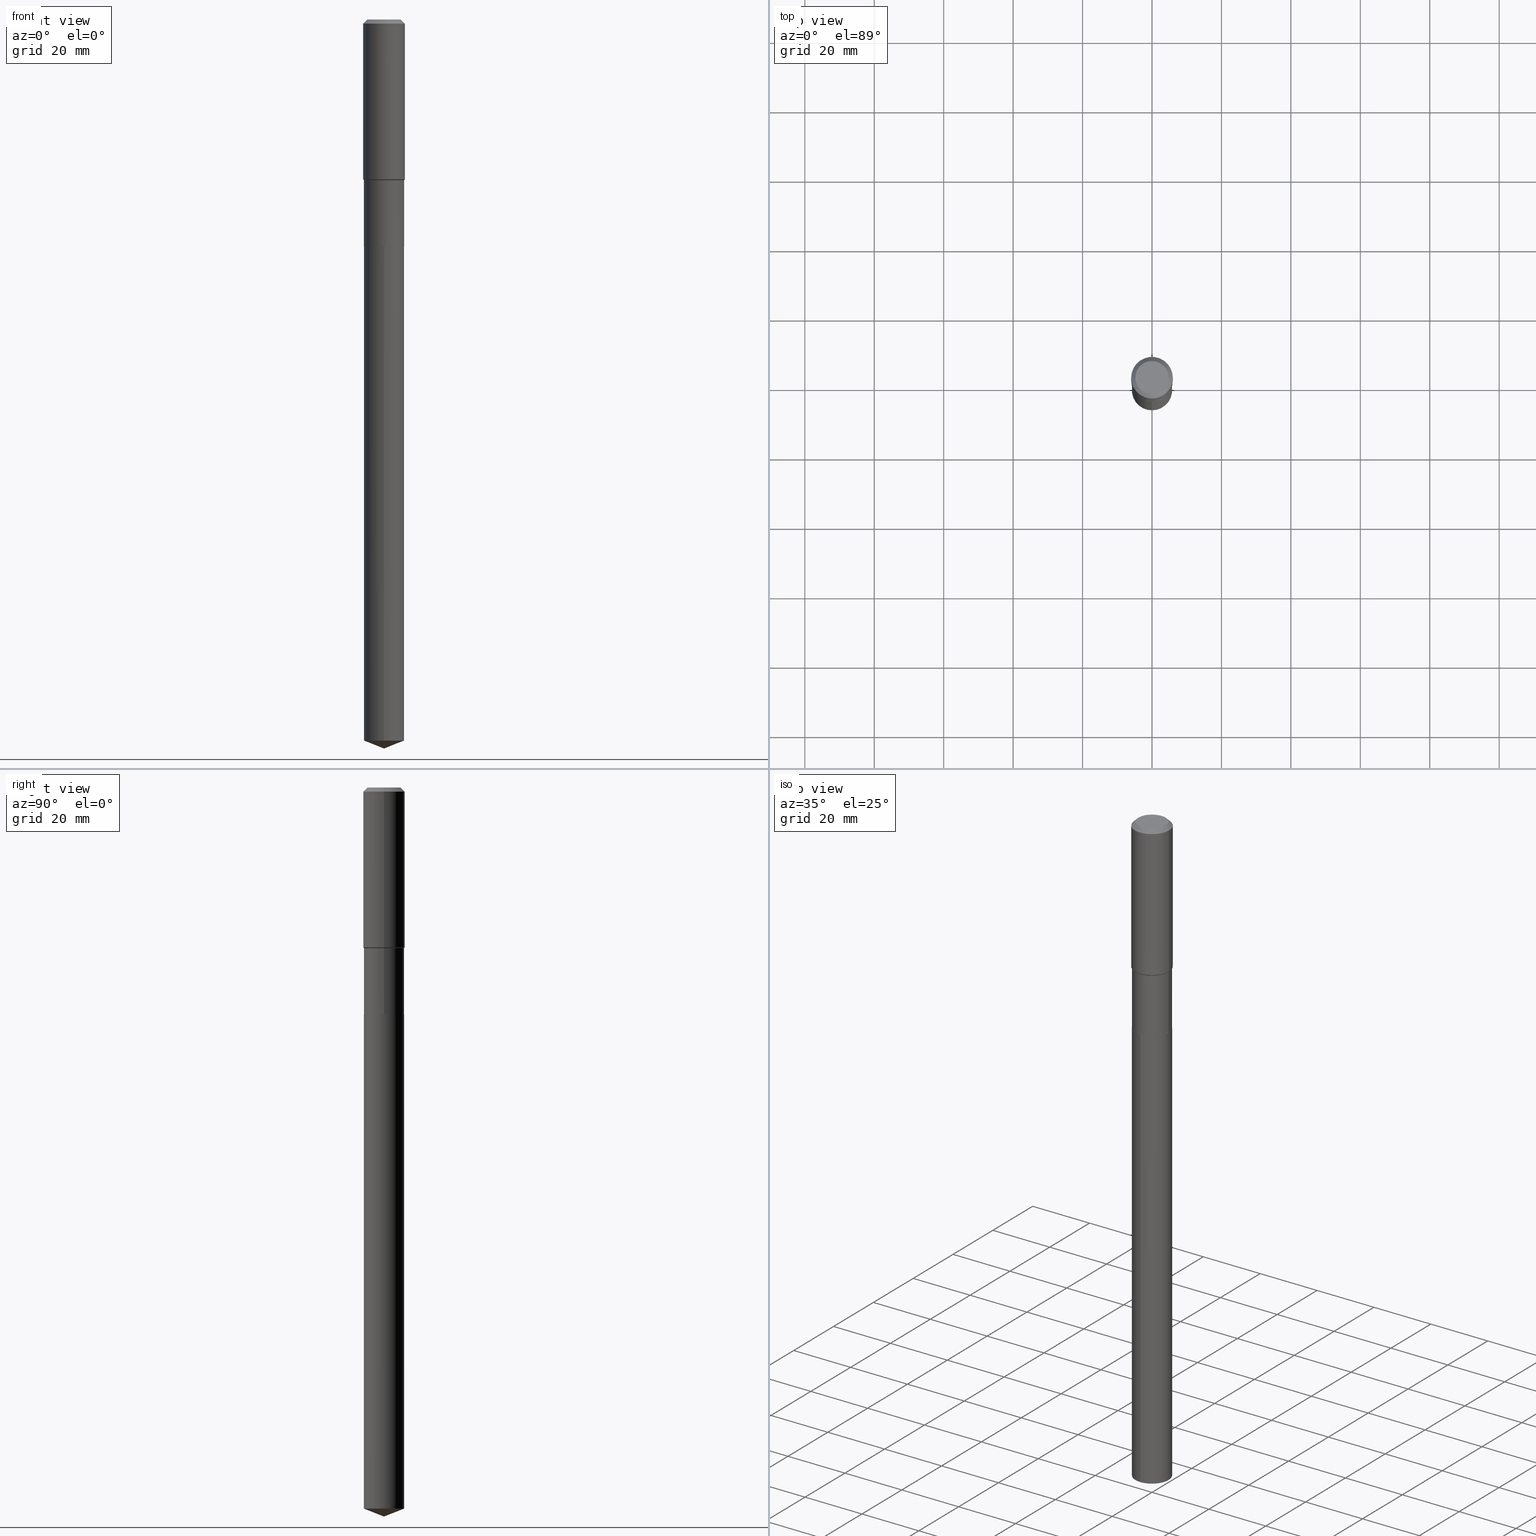
[diagram: canonical four-view strip — front | top / right | iso, engineering-drawing reading convention]
A machine part, canonical four-view strip (front | top / right | iso — engineering-drawing reading convention). The complete STEP part file that produces these views, byte-faithful:
ISO-10303-21;
HEADER;
FILE_DESCRIPTION (( 'STEP AP203' ),
    '1' );
FILE_NAME ('66795.STEP',
    '2024-04-25T06:27:43',
    ( '' ),
    ( '' ),
    'SwSTEP 2.0',
    'SolidWorks 2023',
    '' );
FILE_SCHEMA (( 'CONFIG_CONTROL_DESIGN' ));
ENDSEC;

DATA;
#1 = ADVANCED_FACE ( 'NONE', ( #294 ), #219, .T. ) ;
#2 = CYLINDRICAL_SURFACE ( 'NONE', #289, 0.2283499999999999974 ) ;
#3 = DIRECTION ( 'NONE',  ( 1.000000000000000000, -6.982962677686266711E-15, 4.876176775795936353E-29 ) ) ;
#4 = CIRCLE ( 'NONE', #480, 0.2283499999999999974 ) ;
#5 = MANIFOLD_SOLID_BREP ( 'Body-Move/Copy2[2]', #431 ) ;
#6 = PRODUCT_DEFINITION_SHAPE ( 'NONE', 'NONE',  #258 ) ;
#7 = ORIENTED_EDGE ( 'NONE', *, *, #39, .F. ) ;
#8 = DIMENSIONAL_EXPONENTS ( 1.000000000000000000, 0.000000000000000000, 0.000000000000000000, 0.000000000000000000, 0.000000000000000000, 0.000000000000000000, 0.000000000000000000 ) ;
#9 = VERTEX_POINT ( 'NONE', #56 ) ;
#10 = DIRECTION ( 'NONE',  ( -2.445468806185136597E-29, 3.491481338843145583E-15, 1.000000000000000000 ) ) ;
#11 = CONICAL_SURFACE ( 'NONE', #28, 0.2283499999999999142, 0.7853981633974482790 ) ;
#12 = MANIFOLD_SOLID_BREP ( 'Body-Move/Copy2[1]', #454 ) ;
#13 = CARTESIAN_POINT ( 'NONE',  ( -7.605959320527733782E-28, 1.085917119669947686E-13, 31.10207874015748430 ) ) ;
#14 = LINE ( 'NONE', #125, #96 ) ;
#15 = CARTESIAN_POINT ( 'NONE',  ( 0.000000000000000000, 0.000000000000000000, 0.000000000000000000 ) ) ;
#16 = CARTESIAN_POINT ( 'NONE',  ( 4.454421430466227145E-29, -6.359733258702789937E-15, -1.821500000000000119 ) ) ;
#17 = FACE_OUTER_BOUND ( 'NONE', #29, .T. ) ;
#18 = CIRCLE ( 'NONE', #200, 0.2283499999999999974 ) ;
#19 = PLANE ( 'NONE',  #141 ) ;
#20 = VERTEX_POINT ( 'NONE', #395 ) ;
#21 = APPROVAL ( #100, 'UNSPECIFIED' ) ;
#22 = ADVANCED_FACE ( 'NONE', ( #17 ), #365, .T. ) ;
#23 = EDGE_LOOP ( 'NONE', ( #373, #81, #205 ) ) ;
#24 = EDGE_LOOP ( 'NONE', ( #327, #99, #385, #386 ) ) ;
#25 = AXIS2_PLACEMENT_3D ( 'NONE', #450, #335, #442 ) ;
#26 = ORIENTED_EDGE ( 'NONE', *, *, #142, .T. ) ;
#27 = PERSON_AND_ORGANIZATION ( #202, #341 ) ;
#28 = AXIS2_PLACEMENT_3D ( 'NONE', #440, #171, #326 ) ;
#29 = EDGE_LOOP ( 'NONE', ( #153, #378, #7 ) ) ;
#30 = LINE ( 'NONE', #110, #283 ) ;
#31 = DIRECTION ( 'NONE',  ( -2.438088387897960049E-29, 3.491481338843145188E-15, 1.000000000000000000 ) ) ;
#32 = CC_DESIGN_PERSON_AND_ORGANIZATION_ASSIGNMENT ( #94, #243, ( #256 ) ) ;
#33 = DIRECTION ( 'NONE',  ( -2.445468806185136597E-29, 3.491481338843145583E-15, 1.000000000000000000 ) ) ;
#34 = CARTESIAN_POINT ( 'NONE',  ( -0.2283499999999999142, -4.737208921594601575E-15, -1.821500000000000119 ) ) ;
#35 = CIRCLE ( 'NONE', #303, 0.2283499999999999974 ) ;
#36 = FACE_OUTER_BOUND ( 'NONE', #434, .T. ) ;
#37 = ORIENTED_EDGE ( 'NONE', *, *, #259, .F. ) ;
#38 = CC_DESIGN_PERSON_AND_ORGANIZATION_ASSIGNMENT ( #72, #404, ( #143 ) ) ;
#39 = EDGE_CURVE ( 'NONE', #20, #284, #18, .T. ) ;
#40 = FACE_OUTER_BOUND ( 'NONE', #300, .T. ) ;
#41 = CARTESIAN_POINT ( 'NONE',  ( 2.021924161816590711E-28, -2.886741658655466640E-14, -8.268000000000000682 ) ) ;
#42 = CARTESIAN_POINT ( 'NONE',  ( -0.2362000000000001321, 1.678301941865357577E-15, -1.161852468318209457E-29 ) ) ;
#43 = DIRECTION ( 'NONE',  ( -2.445481569686249051E-29, 3.491463060783099046E-15, 1.000000000000000000 ) ) ;
#44 = CONICAL_SURFACE ( 'NONE', #260, 0.2362000000000000210, 0.7853981633974452814 ) ;
#45 = CIRCLE ( 'NONE', #220, 0.2283499999999999142 ) ;
#46 = ORIENTED_EDGE ( 'NONE', *, *, #252, .T. ) ;
#47 = ORIENTED_EDGE ( 'NONE', *, *, #458, .F. ) ;
#48 =( CONVERSION_BASED_UNIT ( 'INCH', #233 ) LENGTH_UNIT ( ) NAMED_UNIT ( #8 ) );
#49 = CARTESIAN_POINT ( 'NONE',  ( 1.999923901131654645E-28, -2.855340844756166145E-14, -8.178050542893329222 ) ) ;
#50 = ORIENTED_EDGE ( 'NONE', *, *, #66, .F. ) ;
#51 = DIRECTION ( 'NONE',  ( 1.000000000000000000, -6.982962677686266711E-15, 4.876176775795936353E-29 ) ) ;
#52 = CYLINDRICAL_SURFACE ( 'NONE', #213, 0.2362000000000001321 ) ;
#53 = ADVANCED_FACE ( 'NONE', ( #198 ), #382, .T. ) ;
#54 = DIRECTION ( 'NONE',  ( -2.445481569686249051E-29, 3.491463060783099046E-15, 1.000000000000000000 ) ) ;
#55 = CARTESIAN_POINT ( 'NONE',  ( 6.297326722807346866E-29, -8.990913595654986612E-15, -2.575100000000000833 ) ) ;
#56 = CARTESIAN_POINT ( 'NONE',  ( -0.2283499999999999142, -6.051926219735989161E-15, -1.821500000000000119 ) ) ;
#57 = DIRECTION ( 'NONE',  ( -6.982962677686265922E-15, -1.000000000000000000, 3.498627837349988051E-15 ) ) ;
#58 = ADVANCED_FACE ( 'NONE', ( #347 ), #269, .T. ) ;
#59 = ORIENTED_EDGE ( 'NONE', *, *, #470, .T. ) ;
#60 = EDGE_CURVE ( 'NONE', #362, #296, #121, .T. ) ;
#61 = AXIS2_PLACEMENT_3D ( 'NONE', #435, #361, #89 ) ;
#62 = AXIS2_PLACEMENT_3D ( 'NONE', #398, #455, #449 ) ;
#63 = PERSON_AND_ORGANIZATION_ROLE ( 'creator' ) ;
#64 = CARTESIAN_POINT ( 'NONE',  ( 0.000000000000000000, 0.000000000000000000, 0.000000000000000000 ) ) ;
#65 = CARTESIAN_POINT ( 'NONE',  ( 6.296103988404252944E-29, -8.989167854985564319E-15, -2.574600000000000666 ) ) ;
#66 = EDGE_CURVE ( 'NONE', #102, #416, #340, .T. ) ;
#67 = DIRECTION ( 'NONE',  ( 0.000000000000000000, 0.000000000000000000, 1.000000000000000000 ) ) ;
#68 = ORIENTED_EDGE ( 'NONE', *, *, #350, .F. ) ;
#69 = APPROVAL_DATE_TIME ( #408, #21 ) ;
#70 = CARTESIAN_POINT ( 'NONE',  ( 6.297326722807346866E-29, -8.990913595654986612E-15, -2.575100000000000833 ) ) ;
#71 = LINE ( 'NONE', #401, #137 ) ;
#72 = PERSON_AND_ORGANIZATION ( #202, #341 ) ;
#73 = EDGE_CURVE ( 'NONE', #9, #151, #212, .T. ) ;
#74 = ORIENTED_EDGE ( 'NONE', *, *, #350, .T. ) ;
#75 = EDGE_CURVE ( 'NONE', #151, #362, #430, .T. ) ;
#76 = CARTESIAN_POINT ( 'NONE',  ( 0.2362000000000000210, -1.785387205520587177E-15, -0.04724000000000030952 ) ) ;
#77 = CIRCLE ( 'NONE', #195, 0.2278499999999999970 ) ;
#78 = CALENDAR_DATE ( 2024, 25, 4 ) ;
#79 = ADVANCED_FACE ( 'NONE', ( #101 ), #19, .F. ) ;
#80 = DIRECTION ( 'NONE',  ( 1.000000000000000000, -6.982962677686264344E-15, 0.000000000000000000 ) ) ;
#81 = ORIENTED_EDGE ( 'NONE', *, *, #413, .T. ) ;
#82 = CC_DESIGN_PERSON_AND_ORGANIZATION_ASSIGNMENT ( #414, #293, ( #128 ) ) ;
#83 = AXIS2_PLACEMENT_3D ( 'NONE', #392, #161, #57 ) ;
#84 = ORIENTED_EDGE ( 'NONE', *, *, #236, .T. ) ;
#85 = DIRECTION ( 'NONE',  ( -1.000000000000000000, 6.982962677686267499E-15, 0.000000000000000000 ) ) ;
#86 = EDGE_CURVE ( 'NONE', #126, #343, #439, .T. ) ;
#87 = CARTESIAN_POINT ( 'NONE',  ( 6.296103988404252944E-29, -8.989167854985564319E-15, -2.574600000000000666 ) ) ;
#88 = DIRECTION ( 'NONE',  ( -2.445468806185136597E-29, 3.491481338843145583E-15, 1.000000000000000000 ) ) ;
#89 = DIRECTION ( 'NONE',  ( -6.982962677686265922E-15, -1.000000000000000000, 2.392684907960817401E-15 ) ) ;
#90 = CIRCLE ( 'NONE', #188, 0.2283499999999999974 ) ;
#91 = DIRECTION ( 'NONE',  ( -2.445468806185136597E-29, 3.491481338843145583E-15, 1.000000000000000000 ) ) ;
#92 = CARTESIAN_POINT ( 'NONE',  ( 0.2283499999999999142, -7.954292786152448094E-15, -1.821500000000000119 ) ) ;
#93 = APPROVAL_ROLE ( '' ) ;
#94 = PERSON_AND_ORGANIZATION ( #202, #341 ) ;
#95 = DIRECTION ( 'NONE',  ( -2.445481569686249051E-29, 3.491463060783099046E-15, 1.000000000000000000 ) ) ;
#96 = VECTOR ( 'NONE', #272, 39.37007874015748143 ) ;
#97 = LOCAL_TIME ( 2, 27, 43.00000000000000000, #324 ) ;
#98 = DIRECTION ( 'NONE',  ( 0.7071067811864267805, -2.468850131080992517E-15, 0.7071067811866682540 ) ) ;
#99 = ORIENTED_EDGE ( 'NONE', *, *, #109, .T. ) ;
#100 = APPROVAL_STATUS ( 'not_yet_approved' ) ;
#101 = FACE_OUTER_BOUND ( 'NONE', #165, .T. ) ;
#102 = VERTEX_POINT ( 'NONE', #317 ) ;
#103 = AXIS2_PLACEMENT_3D ( 'NONE', #257, #292, #339 ) ;
#104 = VECTOR ( 'NONE', #457, 39.37007874015748143 ) ;
#105 = COORDINATED_UNIVERSAL_TIME_OFFSET ( 5, 0, .BEHIND. ) ;
#106 = CARTESIAN_POINT ( 'NONE',  ( -0.2278499999999999970, -7.371941972225599148E-15, -2.575100000000000833 ) ) ;
#107 = DIRECTION ( 'NONE',  ( 1.000000000000000000, -6.982962677686270655E-15, 0.000000000000000000 ) ) ;
#108 = ADVANCED_FACE ( 'NONE', ( #131 ), #246, .T. ) ;
#109 = EDGE_CURVE ( 'NONE', #415, #362, #275, .T. ) ;
#110 = CARTESIAN_POINT ( 'NONE',  ( 2.021917588358248177E-28, -2.886751072221951483E-14, -8.268000000000000682 ) ) ;
#111 = DIRECTION ( 'NONE',  ( -2.445481569686249051E-29, 3.491463060783099046E-15, 1.000000000000000000 ) ) ;
#112 = AXIS2_PLACEMENT_3D ( 'NONE', #16, #129, #276 ) ;
#113 = CARTESIAN_POINT ( 'NONE',  ( -0.2362000000000000210, -1.570329412454553848E-15, -0.04724000000000030952 ) ) ;
#114 = LOCAL_TIME ( 2, 27, 43.00000000000000000, #313 ) ;
#115 = EDGE_LOOP ( 'NONE', ( #118, #84, #68, #397 ) ) ;
#116 = CARTESIAN_POINT ( 'NONE',  ( -0.2362000000000002153, -4.654023188327512386E-15, -1.813649999999999984 ) ) ;
#117 = DIRECTION ( 'NONE',  ( 1.000000000000000000, -6.982962677686267499E-15, 0.000000000000000000 ) ) ;
#118 = ORIENTED_EDGE ( 'NONE', *, *, #405, .T. ) ;
#119 = CARTESIAN_POINT ( 'NONE',  ( 0.2362000000000002153, -7.981700914662367672E-15, -1.813649999999999984 ) ) ;
#120 = EDGE_CURVE ( 'NONE', #126, #484, #178, .T. ) ;
#121 = LINE ( 'NONE', #274, #127 ) ;
#122 = CC_DESIGN_SECURITY_CLASSIFICATION ( #143, ( #128 ) ) ;
#123 = ORIENTED_EDGE ( 'NONE', *, *, #433, .T. ) ;
#124 = DIRECTION ( 'NONE',  ( 1.000000000000000000, -6.982962677686266711E-15, 0.000000000000000000 ) ) ;
#125 = CARTESIAN_POINT ( 'NONE',  ( -0.2283499999999999697, 1.622524337108188559E-15, -1.123238827859707655E-29 ) ) ;
#126 = VERTEX_POINT ( 'NONE', #369 ) ;
#127 = VECTOR ( 'NONE', #235, 39.37007874015748143 ) ;
#128 = PRODUCT_DEFINITION_FORMATION_WITH_SPECIFIED_SOURCE ( 'ANY', '', #256, .NOT_KNOWN. ) ;
#129 = DIRECTION ( 'NONE',  ( -2.445468806185136597E-29, 3.491481338843145583E-15, 1.000000000000000000 ) ) ;
#130 = ORIENTED_EDGE ( 'NONE', *, *, #120, .T. ) ;
#131 = FACE_OUTER_BOUND ( 'NONE', #163, .T. ) ;
#132 = COORDINATED_UNIVERSAL_TIME_OFFSET ( 5, 0, .BEHIND. ) ;
#133 = PERSON_AND_ORGANIZATION ( #202, #341 ) ;
#134 = CYLINDRICAL_SURFACE ( 'NONE', #466, 0.2283499999999999974 ) ;
#135 = EDGE_LOOP ( 'NONE', ( #211, #26 ) ) ;
#136 = CIRCLE ( 'NONE', #297, 0.1889600000000000168 ) ;
#137 = VECTOR ( 'NONE', #98, 39.37007874015748143 ) ;
#138 = DATE_AND_TIME ( #210, #114 ) ;
#139 = DIRECTION ( 'NONE',  ( -2.445481569686249051E-29, 3.491463060783099046E-15, 1.000000000000000000 ) ) ;
#140 = ORIENTED_EDGE ( 'NONE', *, *, #285, .T. ) ;
#141 = AXIS2_PLACEMENT_3D ( 'NONE', #204, #31, #249 ) ;
#142 = EDGE_CURVE ( 'NONE', #416, #102, #136, .T. ) ;
#143 = SECURITY_CLASSIFICATION ( '', '', #222 ) ;
#144 = CARTESIAN_POINT ( 'NONE',  ( -9.427742298522546243E-47, 1.346031739168365344E-32, 3.855188123715862256E-18 ) ) ;
#145 = ORIENTED_EDGE ( 'NONE', *, *, #458, .T. ) ;
#146 = LINE ( 'NONE', #76, #187 ) ;
#147 = CARTESIAN_POINT ( 'NONE',  ( -1.594559527449595640E-15, -0.2283500000000089902, -2.575099999999999945 ) ) ;
#148 = AXIS2_PLACEMENT_3D ( 'NONE', #329, #176, #488 ) ;
#149 = LINE ( 'NONE', #372, #465 ) ;
#150 = APPROVAL_PERSON_ORGANIZATION ( #168, #464, #160 ) ;
#151 = VERTEX_POINT ( 'NONE', #337 ) ;
#152 = ORIENTED_EDGE ( 'NONE', *, *, #109, .F. ) ;
#153 = ORIENTED_EDGE ( 'NONE', *, *, #413, .F. ) ;
#154 = EDGE_CURVE ( 'NONE', #277, #296, #478, .T. ) ;
#155 = AXIS2_PLACEMENT_3D ( 'NONE', #55, #254, #291 ) ;
#156 = CONICAL_SURFACE ( 'NONE', #432, 0.2283499999999999142, 0.7853981633974482790 ) ;
#157 = DIRECTION ( 'NONE',  ( 1.000000000000000000, -6.982962677686270655E-15, 0.000000000000000000 ) ) ;
#158 = DIRECTION ( 'NONE',  ( -6.982962677686265922E-15, -1.000000000000000000, 3.498627837349988051E-15 ) ) ;
#159 = PLANE ( 'NONE',  #155 ) ;
#160 = APPROVAL_ROLE ( '' ) ;
#161 = DIRECTION ( 'NONE',  ( -2.445481569686249051E-29, 3.491463060783099046E-15, 1.000000000000000000 ) ) ;
#162 = VECTOR ( 'NONE', #164, 39.37007874015748143 ) ;
#163 = EDGE_LOOP ( 'NONE', ( #140, #231, #417, #366 ) ) ;
#164 = DIRECTION ( 'NONE',  ( -0.7071067811864267805, 7.493145998869918709E-15, 0.7071067811866682540 ) ) ;
#165 = EDGE_LOOP ( 'NONE', ( #384, #358 ) ) ;
#166 = DATE_TIME_ROLE ( 'creation_date' ) ;
#167 = VERTEX_POINT ( 'NONE', #41 ) ;
#168 = PERSON_AND_ORGANIZATION ( #202, #341 ) ;
#169 = ORIENTED_EDGE ( 'NONE', *, *, #371, .T. ) ;
#170 = AXIS2_PLACEMENT_3D ( 'NONE', #356, #396, #85 ) ;
#171 = DIRECTION ( 'NONE',  ( -2.445468806185136597E-29, 3.491481338843145583E-15, 1.000000000000000000 ) ) ;
#172 = ORIENTED_EDGE ( 'NONE', *, *, #86, .T. ) ;
#173 = DIRECTION ( 'NONE',  ( -6.497071151882123780E-15, -0.9304175679820252398, 0.3665012267242956367 ) ) ;
#174 = DIRECTION ( 'NONE',  ( 6.611014441532070533E-15, 0.9304175679820277933, 0.3665012267242890864 ) ) ;
#175 = ORIENTED_EDGE ( 'NONE', *, *, #244, .T. ) ;
#176 = DIRECTION ( 'NONE',  ( -2.445468806185136597E-29, 3.491481338843145583E-15, 1.000000000000000000 ) ) ;
#177 = DATE_TIME_ROLE ( 'classification_date' ) ;
#178 = CIRCLE ( 'NONE', #312, 0.2278499999999999970 ) ;
#179 = VECTOR ( 'NONE', #218, 39.37007874015748143 ) ;
#180 = DIRECTION ( 'NONE',  ( -2.445468806185136877E-29, 3.491481338843145188E-15, 1.000000000000000000 ) ) ;
#181 = ORIENTED_EDGE ( 'NONE', *, *, #236, .F. ) ;
#182 = DIRECTION ( 'NONE',  ( -2.445468806185136597E-29, 3.491481338843145583E-15, 1.000000000000000000 ) ) ;
#183 = ORIENTED_EDGE ( 'NONE', *, *, #39, .T. ) ;
#184 = DIRECTION ( 'NONE',  ( -0.7071067811865474617, 7.493145998870352582E-15, 0.7071067811865474617 ) ) ;
#185 = EDGE_LOOP ( 'NONE', ( #226, #183, #175, #422 ) ) ;
#186 = AXIS2_PLACEMENT_3D ( 'NONE', #295, #182, #3 ) ;
#187 = VECTOR ( 'NONE', #221, 39.37007874015748143 ) ;
#188 = AXIS2_PLACEMENT_3D ( 'NONE', #65, #483, #107 ) ;
#189 = ORIENTED_EDGE ( 'NONE', *, *, #60, .F. ) ;
#190 = ORIENTED_EDGE ( 'NONE', *, *, #154, .T. ) ;
#191 = CARTESIAN_POINT ( 'NONE',  ( 4.435224500337672740E-29, -6.332325130192871147E-15, -1.813649999999999984 ) ) ;
#192 = CC_DESIGN_DATE_AND_TIME_ASSIGNMENT ( #359, #166, ( #258 ) ) ;
#193 = VERTEX_POINT ( 'NONE', #147 ) ;
#194 = DIRECTION ( 'NONE',  ( -6.982962677686265922E-15, -1.000000000000000000, 4.785369815921634803E-15 ) ) ;
#195 = AXIS2_PLACEMENT_3D ( 'NONE', #427, #91, #490 ) ;
#196 = FACE_OUTER_BOUND ( 'NONE', #115, .T. ) ;
#197 = SHAPE_DEFINITION_REPRESENTATION ( #6, #247 ) ;
#198 = FACE_OUTER_BOUND ( 'NONE', #443, .T. ) ;
#199 = UNCERTAINTY_MEASURE_WITH_UNIT (LENGTH_MEASURE( 1.000000000000000082E-05 ), #48, 'distance_accuracy_value', 'NONE');
#200 = AXIS2_PLACEMENT_3D ( 'NONE', #49, #54, #194 ) ;
#201 = AXIS2_PLACEMENT_3D ( 'NONE', #381, #33, #364 ) ;
#202 = PERSON ( 'UNSPECIFIED', 'UNSPECIFIED', 'UNSPECIFIED', ('UNSPECIFIED'), ('UNSPECIFIED'), ('UNSPECIFIED') ) ;
#203 = MECHANICAL_CONTEXT ( 'NONE', #334, 'mechanical' ) ;
#204 = CARTESIAN_POINT ( 'NONE',  ( 6.297326722807346866E-29, -8.990913595654986612E-15, -2.575100000000000833 ) ) ;
#205 = ORIENTED_EDGE ( 'NONE', *, *, #371, .F. ) ;
#206 = ORIENTED_EDGE ( 'NONE', *, *, #73, .F. ) ;
#207 = APPROVAL_STATUS ( 'not_yet_approved' ) ;
#208 = APPLICATION_PROTOCOL_DEFINITION ( 'international standard', 'config_control_design', 1994, #334 ) ;
#209 = FACE_OUTER_BOUND ( 'NONE', #426, .T. ) ;
#210 = CALENDAR_DATE ( 2024, 25, 4 ) ;
#211 = ORIENTED_EDGE ( 'NONE', *, *, #66, .T. ) ;
#212 = CIRCLE ( 'NONE', #112, 0.2283499999999999142 ) ;
#213 = AXIS2_PLACEMENT_3D ( 'NONE', #15, #423, #51 ) ;
#214 = CALENDAR_DATE ( 2024, 25, 4 ) ;
#215 = ADVANCED_FACE ( 'NONE', ( #444 ), #225, .T. ) ;
#216 = CARTESIAN_POINT ( 'NONE',  ( 6.297326722807346866E-29, -8.990913595654986612E-15, -2.575100000000000833 ) ) ;
#217 = DIRECTION ( 'NONE',  ( 1.000000000000000000, -6.982962677686266711E-15, 4.876185090822587894E-29 ) ) ;
#218 = DIRECTION ( 'NONE',  ( -2.445468806185136877E-29, 3.491481338843145188E-15, 1.000000000000000000 ) ) ;
#219 = CONICAL_SURFACE ( 'NONE', #170, 0.2362000000000000210, 0.7853981633974452814 ) ;
#220 = AXIS2_PLACEMENT_3D ( 'NONE', #229, #393, #308 ) ;
#221 = DIRECTION ( 'NONE',  ( 0.7071067811865453523, -7.319954787623248157E-15, -0.7071067811865496822 ) ) ;
#222 = SECURITY_CLASSIFICATION_LEVEL ( 'unclassified' ) ;
#223 = APPROVAL ( #207, 'UNSPECIFIED' ) ;
#224 = ADVANCED_FACE ( 'NONE', ( #36 ), #44, .T. ) ;
#225 = CYLINDRICAL_SURFACE ( 'NONE', #186, 0.2362000000000001321 ) ;
#226 = ORIENTED_EDGE ( 'NONE', *, *, #363, .F. ) ;
#227 = FACE_OUTER_BOUND ( 'NONE', #351, .T. ) ;
#228 = CARTESIAN_POINT ( 'NONE',  ( 1.155239464041866207E-30, -1.649375784469512845E-16, -0.04724000000000030952 ) ) ;
#229 = CARTESIAN_POINT ( 'NONE',  ( 4.454421430466227145E-29, -6.359733258702789937E-15, -1.821500000000000119 ) ) ;
#230 = ADVANCED_FACE ( 'NONE', ( #380 ), #2, .T. ) ;
#231 = ORIENTED_EDGE ( 'NONE', *, *, #301, .T. ) ;
#232 = EDGE_LOOP ( 'NONE', ( #242, #50, #320, #190 ) ) ;
#233 = LENGTH_MEASURE_WITH_UNIT ( LENGTH_MEASURE( 0.02539999999999999897 ), #338 );
#234 = DIRECTION ( 'NONE',  ( -2.445468806185136597E-29, 3.491481338843145583E-15, 1.000000000000000000 ) ) ;
#235 = DIRECTION ( 'NONE',  ( -2.445468806185136877E-29, 3.491481338843145188E-15, 1.000000000000000000 ) ) ;
#236 = EDGE_CURVE ( 'NONE', #9, #415, #290, .T. ) ;
#237 = DIRECTION ( 'NONE',  ( 1.000000000000000000, -6.982962677686265133E-15, 0.000000000000000000 ) ) ;
#238 = VECTOR ( 'NONE', #481, 39.37007874015748854 ) ;
#239 = VECTOR ( 'NONE', #174, 39.37007874015748143 ) ;
#240 = FACE_OUTER_BOUND ( 'NONE', #336, .T. ) ;
#241 = CARTESIAN_POINT ( 'NONE',  ( 0.2278499999999999970, -1.058198164176580255E-14, -2.575100000000000833 ) ) ;
#242 = ORIENTED_EDGE ( 'NONE', *, *, #252, .F. ) ;
#243 = PERSON_AND_ORGANIZATION_ROLE ( 'design_owner' ) ;
#244 = EDGE_CURVE ( 'NONE', #284, #193, #149, .T. ) ;
#245 = PERSON_AND_ORGANIZATION_ROLE ( 'design_supplier' ) ;
#246 = CYLINDRICAL_SURFACE ( 'NONE', #148, 0.2283499999999999697 ) ;
#247 = ADVANCED_BREP_SHAPE_REPRESENTATION ( '66795', ( #12, #5, #375 ), #250 ) ;
#248 = EDGE_CURVE ( 'NONE', #468, #151, #298, .T. ) ;
#249 = DIRECTION ( 'NONE',  ( 1.000000000000000000, -6.982962677686265922E-15, 4.876176775795935793E-29 ) ) ;
#250 =( GEOMETRIC_REPRESENTATION_CONTEXT ( 3 ) GLOBAL_UNCERTAINTY_ASSIGNED_CONTEXT ( ( #199 ) ) GLOBAL_UNIT_ASSIGNED_CONTEXT ( ( #48, #355, #266 ) ) REPRESENTATION_CONTEXT ( 'NONE', 'WORKASPACE' ) );
#251 = CONICAL_SURFACE ( 'NONE', #201, 0.2278499999999999970, 0.7853981633972775267 ) ;
#252 = EDGE_CURVE ( 'NONE', #416, #296, #146, .T. ) ;
#253 = CALENDAR_DATE ( 2024, 25, 4 ) ;
#254 = DIRECTION ( 'NONE',  ( 2.445481569686248771E-29, -3.491463060783099046E-15, -1.000000000000000000 ) ) ;
#255 = CARTESIAN_POINT ( 'NONE',  ( 6.297326722807346866E-29, -8.990913595654986612E-15, -2.575100000000000833 ) ) ;
#256 = PRODUCT ( '66795', '66795', '', ( #203 ) ) ;
#257 = CARTESIAN_POINT ( 'NONE',  ( 1.155239464041866207E-30, -1.649375784469512845E-16, -0.04724000000000030952 ) ) ;
#258 = PRODUCT_DEFINITION ( 'UNKNOWN', '', #128, #473 ) ;
#259 = EDGE_CURVE ( 'NONE', #296, #277, #438, .T. ) ;
#260 = AXIS2_PLACEMENT_3D ( 'NONE', #228, #410, #264 ) ;
#261 = CIRCLE ( 'NONE', #420, 0.2283499999999999974 ) ;
#262 = DIRECTION ( 'NONE',  ( -6.982962677686265922E-15, -1.000000000000000000, 2.392684907960817401E-15 ) ) ;
#263 = CARTESIAN_POINT ( 'NONE',  ( 0.1889600000000000168, -1.540873453589747935E-15, 3.855188123725863225E-18 ) ) ;
#264 = DIRECTION ( 'NONE',  ( -1.000000000000000000, 6.982962677686267499E-15, 0.000000000000000000 ) ) ;
#265 = ORIENTED_EDGE ( 'NONE', *, *, #86, .F. ) ;
#266 =( NAMED_UNIT ( * ) SI_UNIT ( $, .STERADIAN. ) SOLID_ANGLE_UNIT ( ) );
#267 = DIRECTION ( 'NONE',  ( -6.982962677686265922E-15, -1.000000000000000000, 4.785369815921634803E-15 ) ) ;
#268 = ORIENTED_EDGE ( 'NONE', *, *, #301, .F. ) ;
#269 = CONICAL_SURFACE ( 'NONE', #281, 99.94676754584043010, 1.195550537616121067 ) ;
#270 = LOCAL_TIME ( 2, 27, 43.00000000000000000, #132 ) ;
#271 = FACE_OUTER_BOUND ( 'NONE', #402, .T. ) ;
#272 = DIRECTION ( 'NONE',  ( -2.445468806185136877E-29, 3.491481338843145188E-15, 1.000000000000000000 ) ) ;
#273 = DIRECTION ( 'NONE',  ( -2.445481569686249051E-29, 3.491463060783099046E-15, 1.000000000000000000 ) ) ;
#274 = CARTESIAN_POINT ( 'NONE',  ( 0.2362000000000001321, -1.649375784469497117E-15, 1.151752954443000789E-29 ) ) ;
#275 = CIRCLE ( 'NONE', #25, 0.2362000000000002153 ) ;
#276 = DIRECTION ( 'NONE',  ( 1.000000000000000000, -6.982962677686265133E-15, 0.000000000000000000 ) ) ;
#277 = VERTEX_POINT ( 'NONE', #113 ) ;
#278 = CC_DESIGN_PERSON_AND_ORGANIZATION_ASSIGNMENT ( #27, #63, ( #258 ) ) ;
#279 = CARTESIAN_POINT ( 'NONE',  ( 0.2283499999999999974, -1.058372738243522484E-14, -2.574600000000000666 ) ) ;
#280 = CARTESIAN_POINT ( 'NONE',  ( 6.297326722807346866E-29, -8.990913595654986612E-15, -2.575100000000000833 ) ) ;
#281 = AXIS2_PLACEMENT_3D ( 'NONE', #13, #346, #158 ) ;
#282 = EDGE_CURVE ( 'NONE', #193, #299, #487, .T. ) ;
#283 = VECTOR ( 'NONE', #173, 39.37007874015748854 ) ;
#284 = VERTEX_POINT ( 'NONE', #453 ) ;
#285 = EDGE_CURVE ( 'NONE', #468, #343, #35, .T. ) ;
#286 = APPROVAL_DATE_TIME ( #138, #464 ) ;
#287 = ORIENTED_EDGE ( 'NONE', *, *, #433, .F. ) ;
#288 = PLANE ( 'NONE',  #467 ) ;
#289 = AXIS2_PLACEMENT_3D ( 'NONE', #255, #111, #262 ) ;
#290 = LINE ( 'NONE', #34, #330 ) ;
#291 = DIRECTION ( 'NONE',  ( 6.982962677686265922E-15, 1.000000000000000000, -3.491463060783099046E-15 ) ) ;
#292 = DIRECTION ( 'NONE',  ( -2.445468806185136597E-29, 3.491481338843145583E-15, 1.000000000000000000 ) ) ;
#293 = PERSON_AND_ORGANIZATION_ROLE ( 'creator' ) ;
#294 = FACE_OUTER_BOUND ( 'NONE', #232, .T. ) ;
#295 = CARTESIAN_POINT ( 'NONE',  ( 0.000000000000000000, 0.000000000000000000, 0.000000000000000000 ) ) ;
#296 = VERTEX_POINT ( 'NONE', #305 ) ;
#297 = AXIS2_PLACEMENT_3D ( 'NONE', #144, #489, #217 ) ;
#298 = LINE ( 'NONE', #411, #406 ) ;
#299 = VERTEX_POINT ( 'NONE', #459 ) ;
#300 = EDGE_LOOP ( 'NONE', ( #74, #311, #37, #189 ) ) ;
#301 = EDGE_CURVE ( 'NONE', #343, #9, #14, .T. ) ;
#302 = ORIENTED_EDGE ( 'NONE', *, *, #244, .F. ) ;
#303 = AXIS2_PLACEMENT_3D ( 'NONE', #87, #10, #157 ) ;
#304 = AXIS2_PLACEMENT_3D ( 'NONE', #191, #345, #124 ) ;
#305 = CARTESIAN_POINT ( 'NONE',  ( 0.2362000000000000210, -1.814313362916447834E-15, -0.04724000000000030952 ) ) ;
#306 = CARTESIAN_POINT ( 'NONE',  ( 1.999923901131654645E-28, -2.855340844756166145E-14, -8.178050542893329222 ) ) ;
#307 = ADVANCED_FACE ( 'NONE', ( #240 ), #159, .F. ) ;
#308 = DIRECTION ( 'NONE',  ( 1.000000000000000000, -6.982962677686265133E-15, 0.000000000000000000 ) ) ;
#309 = CARTESIAN_POINT ( 'NONE',  ( -0.2362000000000000210, 1.484438206022545019E-15, -0.04724000000000030952 ) ) ;
#310 = ORIENTED_EDGE ( 'NONE', *, *, #282, .F. ) ;
#311 = ORIENTED_EDGE ( 'NONE', *, *, #333, .T. ) ;
#312 = AXIS2_PLACEMENT_3D ( 'NONE', #70, #376, #80 ) ;
#313 = COORDINATED_UNIVERSAL_TIME_OFFSET ( 5, 0, .BEHIND. ) ;
#314 = APPROVAL_PERSON_ORGANIZATION ( #133, #21, #437 ) ;
#315 = DIRECTION ( 'NONE',  ( 1.000000000000000000, -6.982962677686264344E-15, 0.000000000000000000 ) ) ;
#316 = EDGE_CURVE ( 'NONE', #167, #284, #30, .T. ) ;
#317 = CARTESIAN_POINT ( 'NONE',  ( -0.1889600000000000168, 1.401969416799070942E-15, 3.855188123706346622E-18 ) ) ;
#318 = ORIENTED_EDGE ( 'NONE', *, *, #363, .T. ) ;
#319 = PERSON_AND_ORGANIZATION ( #202, #341 ) ;
#320 = ORIENTED_EDGE ( 'NONE', *, *, #390, .T. ) ;
#321 = DIRECTION ( 'NONE',  ( 1.000000000000000000, 0.000000000000000000, 0.000000000000000000 ) ) ;
#322 = APPLICATION_CONTEXT ( 'configuration controlled 3d designs of mechanical parts and assemblies' ) ;
#323 = ORIENTED_EDGE ( 'NONE', *, *, #259, .T. ) ;
#324 = COORDINATED_UNIVERSAL_TIME_OFFSET ( 5, 0, .BEHIND. ) ;
#325 = CC_DESIGN_PERSON_AND_ORGANIZATION_ASSIGNMENT ( #319, #245, ( #128 ) ) ;
#326 = DIRECTION ( 'NONE',  ( 1.000000000000000000, -6.982962677686265133E-15, 0.000000000000000000 ) ) ;
#327 = ORIENTED_EDGE ( 'NONE', *, *, #333, .F. ) ;
#328 = FACE_OUTER_BOUND ( 'NONE', #389, .T. ) ;
#329 = CARTESIAN_POINT ( 'NONE',  ( 0.000000000000000000, 0.000000000000000000, 0.000000000000000000 ) ) ;
#330 = VECTOR ( 'NONE', #184, 39.37007874015748854 ) ;
#331 = LOCAL_TIME ( 2, 27, 43.00000000000000000, #105 ) ;
#332 = PRODUCT_RELATED_PRODUCT_CATEGORY ( 'detail', '', ( #256 ) ) ;
#333 = EDGE_CURVE ( 'NONE', #415, #277, #379, .T. ) ;
#334 = APPLICATION_CONTEXT ( 'configuration controlled 3d designs of mechanical parts and assemblies' ) ;
#335 = DIRECTION ( 'NONE',  ( -2.445468806185136597E-29, 3.491481338843145583E-15, 1.000000000000000000 ) ) ;
#336 = EDGE_LOOP ( 'NONE', ( #463, #59 ) ) ;
#337 = CARTESIAN_POINT ( 'NONE',  ( 0.2283499999999999142, -7.954292786152448094E-15, -1.821500000000000119 ) ) ;
#338 =( LENGTH_UNIT ( ) NAMED_UNIT ( * ) SI_UNIT ( $, .METRE. ) );
#339 = DIRECTION ( 'NONE',  ( 1.000000000000000000, -6.982962677686267499E-15, 0.000000000000000000 ) ) ;
#340 = CIRCLE ( 'NONE', #357, 0.1889600000000000168 ) ;
#341 = ORGANIZATION ( 'UNSPECIFIED', 'UNSPECIFIED', '' ) ;
#342 = CC_DESIGN_DATE_AND_TIME_ASSIGNMENT ( #377, #177, ( #143 ) ) ;
#343 = VERTEX_POINT ( 'NONE', #482 ) ;
#344 = LINE ( 'NONE', #419, #239 ) ;
#345 = DIRECTION ( 'NONE',  ( -2.445468806185136597E-29, 3.491481338843145583E-15, 1.000000000000000000 ) ) ;
#346 = DIRECTION ( 'NONE',  ( -2.445481569686249051E-29, 3.491463060783099046E-15, 1.000000000000000000 ) ) ;
#347 = FACE_OUTER_BOUND ( 'NONE', #23, .T. ) ;
#348 = CARTESIAN_POINT ( 'NONE',  ( 4.454421430466227145E-29, -6.359733258702789937E-15, -1.821500000000000119 ) ) ;
#349 = ADVANCED_FACE ( 'NONE', ( #485 ), #288, .F. ) ;
#350 = EDGE_CURVE ( 'NONE', #362, #415, #394, .T. ) ;
#351 = EDGE_LOOP ( 'NONE', ( #360, #172, #436, #287 ) ) ;
#352 = DIRECTION ( 'NONE',  ( -2.445468806185136597E-29, 3.491481338843145583E-15, 1.000000000000000000 ) ) ;
#353 = LINE ( 'NONE', #309, #448 ) ;
#354 = DIRECTION ( 'NONE',  ( 1.000000000000000000, -6.982962677686266711E-15, 4.876185090822587894E-29 ) ) ;
#355 =( NAMED_UNIT ( * ) PLANE_ANGLE_UNIT ( ) SI_UNIT ( $, .RADIAN. ) );
#356 = CARTESIAN_POINT ( 'NONE',  ( 1.155239464041866207E-30, -1.649375784469512845E-16, -0.04724000000000030952 ) ) ;
#357 = AXIS2_PLACEMENT_3D ( 'NONE', #462, #88, #354 ) ;
#358 = ORIENTED_EDGE ( 'NONE', *, *, #120, .F. ) ;
#359 = DATE_AND_TIME ( #214, #97 ) ;
#360 = ORIENTED_EDGE ( 'NONE', *, *, #403, .T. ) ;
#361 = DIRECTION ( 'NONE',  ( -2.445481569686249051E-29, 3.491463060783099046E-15, 1.000000000000000000 ) ) ;
#362 = VERTEX_POINT ( 'NONE', #119 ) ;
#363 = EDGE_CURVE ( 'NONE', #20, #299, #391, .T. ) ;
#364 = DIRECTION ( 'NONE',  ( 1.000000000000000000, -6.982962677686264344E-15, 0.000000000000000000 ) ) ;
#365 = CONICAL_SURFACE ( 'NONE', #83, 99.94676754584043010, 1.195550537616121067 ) ;
#366 = ORIENTED_EDGE ( 'NONE', *, *, #248, .F. ) ;
#367 = ORIENTED_EDGE ( 'NONE', *, *, #75, .T. ) ;
#368 = CARTESIAN_POINT ( 'NONE',  ( -4.713871149261273121E-47, 6.730158695841826722E-33, 1.927594061857931128E-18 ) ) ;
#369 = CARTESIAN_POINT ( 'NONE',  ( -0.2278499999999999970, -7.369292745051487158E-15, -2.575100000000000833 ) ) ;
#370 = ADVANCED_FACE ( 'NONE', ( #196 ), #156, .T. ) ;
#371 = EDGE_CURVE ( 'NONE', #284, #20, #261, .T. ) ;
#372 = CARTESIAN_POINT ( 'NONE',  ( -1.594559527449595640E-15, -0.2283500000000089902, -2.575099999999999945 ) ) ;
#373 = ORIENTED_EDGE ( 'NONE', *, *, #316, .F. ) ;
#374 = AXIS2_PLACEMENT_3D ( 'NONE', #452, #352, #315 ) ;
#375 = AXIS2_PLACEMENT_3D ( 'NONE', #64, #67, #321 ) ;
#376 = DIRECTION ( 'NONE',  ( -2.445468806185136597E-29, 3.491481338843145583E-15, 1.000000000000000000 ) ) ;
#377 = DATE_AND_TIME ( #78, #400 ) ;
#378 = ORIENTED_EDGE ( 'NONE', *, *, #316, .T. ) ;
#379 = LINE ( 'NONE', #42, #179 ) ;
#380 = FACE_OUTER_BOUND ( 'NONE', #185, .T. ) ;
#381 = CARTESIAN_POINT ( 'NONE',  ( 6.297326722807346866E-29, -8.990913595654986612E-15, -2.575100000000000833 ) ) ;
#382 = CONICAL_SURFACE ( 'NONE', #374, 0.2278499999999999970, 0.7853981633972775267 ) ;
#383 = CC_DESIGN_APPROVAL ( #223, ( #143 ) ) ;
#384 = ORIENTED_EDGE ( 'NONE', *, *, #403, .F. ) ;
#385 = ORIENTED_EDGE ( 'NONE', *, *, #60, .T. ) ;
#386 = ORIENTED_EDGE ( 'NONE', *, *, #154, .F. ) ;
#387 = DIRECTION ( 'NONE',  ( -0.7071067811865453523, 2.468850131082234184E-15, -0.7071067811865496822 ) ) ;
#388 = CYLINDRICAL_SURFACE ( 'NONE', #62, 0.2283499999999999697 ) ;
#389 = EDGE_LOOP ( 'NONE', ( #181, #477, #367, #152 ) ) ;
#390 = EDGE_CURVE ( 'NONE', #102, #277, #353, .T. ) ;
#391 = LINE ( 'NONE', #424, #104 ) ;
#392 = CARTESIAN_POINT ( 'NONE',  ( -7.605959320527733782E-28, 1.085917119669947686E-13, 31.10207874015748430 ) ) ;
#393 = DIRECTION ( 'NONE',  ( -2.445468806185136597E-29, 3.491481338843145583E-15, 1.000000000000000000 ) ) ;
#394 = CIRCLE ( 'NONE', #304, 0.2362000000000002153 ) ;
#395 = CARTESIAN_POINT ( 'NONE',  ( 1.622524337108388338E-15, 0.2283499999999714092, -8.178050542893330999 ) ) ;
#396 = DIRECTION ( 'NONE',  ( 2.445468806185136597E-29, -3.491481338843145583E-15, -1.000000000000000000 ) ) ;
#397 = ORIENTED_EDGE ( 'NONE', *, *, #75, .F. ) ;
#398 = CARTESIAN_POINT ( 'NONE',  ( 0.000000000000000000, 0.000000000000000000, 0.000000000000000000 ) ) ;
#399 = APPLICATION_PROTOCOL_DEFINITION ( 'international standard', 'config_control_design', 1994, #322 ) ;
#400 = LOCAL_TIME ( 2, 27, 43.00000000000000000, #445 ) ;
#401 = CARTESIAN_POINT ( 'NONE',  ( 0.2278499999999999970, -1.058198164176580255E-14, -2.575100000000000833 ) ) ;
#402 = EDGE_LOOP ( 'NONE', ( #268, #145, #472, #206 ) ) ;
#403 = EDGE_CURVE ( 'NONE', #484, #126, #77, .T. ) ;
#404 = PERSON_AND_ORGANIZATION_ROLE ( 'classification_officer' ) ;
#405 = EDGE_CURVE ( 'NONE', #151, #9, #45, .T. ) ;
#406 = VECTOR ( 'NONE', #180, 39.37007874015748143 ) ;
#407 = APPROVAL_PERSON_ORGANIZATION ( #469, #223, #93 ) ;
#408 = DATE_AND_TIME ( #253, #331 ) ;
#409 = ADVANCED_FACE ( 'NONE', ( #271 ), #388, .T. ) ;
#410 = DIRECTION ( 'NONE',  ( 2.445468806185136597E-29, -3.491481338843145583E-15, -1.000000000000000000 ) ) ;
#411 = CARTESIAN_POINT ( 'NONE',  ( 0.2283499999999999697, -1.594559527449658749E-15, 1.113474966753001794E-29 ) ) ;
#412 = CARTESIAN_POINT ( 'NONE',  ( 1.155239464041866207E-30, -1.649375784469512845E-16, -0.04724000000000030952 ) ) ;
#413 = EDGE_CURVE ( 'NONE', #167, #20, #344, .T. ) ;
#414 = PERSON_AND_ORGANIZATION ( #202, #341 ) ;
#415 = VERTEX_POINT ( 'NONE', #116 ) ;
#416 = VERTEX_POINT ( 'NONE', #263 ) ;
#417 = ORIENTED_EDGE ( 'NONE', *, *, #405, .F. ) ;
#418 = AXIS2_PLACEMENT_3D ( 'NONE', #412, #446, #117 ) ;
#419 = CARTESIAN_POINT ( 'NONE',  ( 2.021924219458060920E-28, -2.886741658655466640E-14, -8.268000000000000682 ) ) ;
#420 = AXIS2_PLACEMENT_3D ( 'NONE', #306, #273, #267 ) ;
#421 = ADVANCED_FACE ( 'NONE', ( #227 ), #251, .T. ) ;
#422 = ORIENTED_EDGE ( 'NONE', *, *, #470, .F. ) ;
#423 = DIRECTION ( 'NONE',  ( -2.445468806185136597E-29, 3.491481338843145583E-15, 1.000000000000000000 ) ) ;
#424 = CARTESIAN_POINT ( 'NONE',  ( 1.622524337108251668E-15, 0.2283499999999910324, -2.575100000000001277 ) ) ;
#425 = APPROVAL_DATE_TIME ( #471, #223 ) ;
#426 = EDGE_LOOP ( 'NONE', ( #169, #318, #310, #302 ) ) ;
#427 = CARTESIAN_POINT ( 'NONE',  ( 6.297326722807346866E-29, -8.990913595654986612E-15, -2.575100000000000833 ) ) ;
#428 = CC_DESIGN_APPROVAL ( #464, ( #258 ) ) ;
#429 = CALENDAR_DATE ( 2024, 25, 4 ) ;
#430 = LINE ( 'NONE', #92, #238 ) ;
#431 = CLOSED_SHELL ( 'NONE', ( #421, #224, #475, #370, #108, #409, #441, #215, #1, #349, #79, #53 ) ) ;
#432 = AXIS2_PLACEMENT_3D ( 'NONE', #348, #234, #237 ) ;
#433 = EDGE_CURVE ( 'NONE', #484, #468, #71, .T. ) ;
#434 = EDGE_LOOP ( 'NONE', ( #461, #46, #323, #447 ) ) ;
#435 = CARTESIAN_POINT ( 'NONE',  ( 6.297326722807346866E-29, -8.990913595654986612E-15, -2.575100000000000833 ) ) ;
#436 = ORIENTED_EDGE ( 'NONE', *, *, #285, .F. ) ;
#437 = APPROVAL_ROLE ( '' ) ;
#438 = CIRCLE ( 'NONE', #418, 0.2362000000000000210 ) ;
#439 = LINE ( 'NONE', #106, #162 ) ;
#440 = CARTESIAN_POINT ( 'NONE',  ( 4.454421430466227145E-29, -6.359733258702789937E-15, -1.821500000000000119 ) ) ;
#441 = ADVANCED_FACE ( 'NONE', ( #328 ), #11, .T. ) ;
#442 = DIRECTION ( 'NONE',  ( 1.000000000000000000, -6.982962677686266711E-15, 0.000000000000000000 ) ) ;
#443 = EDGE_LOOP ( 'NONE', ( #265, #130, #123, #47 ) ) ;
#444 = FACE_OUTER_BOUND ( 'NONE', #24, .T. ) ;
#445 = COORDINATED_UNIVERSAL_TIME_OFFSET ( 5, 0, .BEHIND. ) ;
#446 = DIRECTION ( 'NONE',  ( -2.445468806185136597E-29, 3.491481338843145583E-15, 1.000000000000000000 ) ) ;
#447 = ORIENTED_EDGE ( 'NONE', *, *, #390, .F. ) ;
#448 = VECTOR ( 'NONE', #387, 39.37007874015748143 ) ;
#449 = DIRECTION ( 'NONE',  ( 1.000000000000000000, -6.982962677686266711E-15, 4.876176775795935793E-29 ) ) ;
#450 = CARTESIAN_POINT ( 'NONE',  ( 4.435224500337672740E-29, -6.332325130192871147E-15, -1.813649999999999984 ) ) ;
#451 = DIRECTION ( 'NONE',  ( -1.000000000000000000, 6.982962677686265922E-15, -4.876176775795935793E-29 ) ) ;
#452 = CARTESIAN_POINT ( 'NONE',  ( 6.297326722807346866E-29, -8.990913595654986612E-15, -2.575100000000000833 ) ) ;
#453 = CARTESIAN_POINT ( 'NONE',  ( -1.594559527449458576E-15, -0.2283500000000284746, -8.178050542893329222 ) ) ;
#454 = CLOSED_SHELL ( 'NONE', ( #474, #58, #22, #230, #307 ) ) ;
#455 = DIRECTION ( 'NONE',  ( -2.445468806185136597E-29, 3.491481338843145583E-15, 1.000000000000000000 ) ) ;
#456 = CC_DESIGN_APPROVAL ( #21, ( #128 ) ) ;
#457 = DIRECTION ( 'NONE',  ( -2.445481569686249051E-29, 3.491463060783099046E-15, 1.000000000000000000 ) ) ;
#458 = EDGE_CURVE ( 'NONE', #343, #468, #90, .T. ) ;
#459 = CARTESIAN_POINT ( 'NONE',  ( 1.622524337108389718E-15, 0.2283499999999910601, -2.575100000000001277 ) ) ;
#460 = DIRECTION ( 'NONE',  ( -6.982962677686265922E-15, -1.000000000000000000, 2.392684907960817401E-15 ) ) ;
#461 = ORIENTED_EDGE ( 'NONE', *, *, #142, .F. ) ;
#462 = CARTESIAN_POINT ( 'NONE',  ( -9.427742298522546243E-47, 1.346031739168365344E-32, 3.855188123715862256E-18 ) ) ;
#463 = ORIENTED_EDGE ( 'NONE', *, *, #282, .T. ) ;
#464 = APPROVAL ( #479, 'UNSPECIFIED' ) ;
#465 = VECTOR ( 'NONE', #43, 39.37007874015748143 ) ;
#466 = AXIS2_PLACEMENT_3D ( 'NONE', #280, #139, #460 ) ;
#467 = AXIS2_PLACEMENT_3D ( 'NONE', #368, #486, #451 ) ;
#468 = VERTEX_POINT ( 'NONE', #279 ) ;
#469 = PERSON_AND_ORGANIZATION ( #202, #341 ) ;
#470 = EDGE_CURVE ( 'NONE', #299, #193, #4, .T. ) ;
#471 = DATE_AND_TIME ( #429, #270 ) ;
#472 = ORIENTED_EDGE ( 'NONE', *, *, #248, .T. ) ;
#473 = DESIGN_CONTEXT ( 'detailed design', #322, 'design' ) ;
#474 = ADVANCED_FACE ( 'NONE', ( #209 ), #134, .T. ) ;
#475 = ADVANCED_FACE ( 'NONE', ( #40 ), #52, .T. ) ;
#476 = DIRECTION ( 'NONE',  ( -6.982962677686265922E-15, -1.000000000000000000, 2.392684907960817401E-15 ) ) ;
#477 = ORIENTED_EDGE ( 'NONE', *, *, #73, .T. ) ;
#478 = CIRCLE ( 'NONE', #103, 0.2362000000000000210 ) ;
#479 = APPROVAL_STATUS ( 'not_yet_approved' ) ;
#480 = AXIS2_PLACEMENT_3D ( 'NONE', #216, #95, #476 ) ;
#481 = DIRECTION ( 'NONE',  ( 0.7071067811865474617, -2.468850131082256666E-15, 0.7071067811865474617 ) ) ;
#482 = CARTESIAN_POINT ( 'NONE',  ( -0.2283499999999999974, -6.051926219735989161E-15, -2.574600000000000666 ) ) ;
#483 = DIRECTION ( 'NONE',  ( -2.445468806185136597E-29, 3.491481338843145583E-15, 1.000000000000000000 ) ) ;
#484 = VERTEX_POINT ( 'NONE', #241 ) ;
#485 = FACE_OUTER_BOUND ( 'NONE', #135, .T. ) ;
#486 = DIRECTION ( 'NONE',  ( 2.438088387897960049E-29, -3.491481338843145188E-15, -1.000000000000000000 ) ) ;
#487 = CIRCLE ( 'NONE', #61, 0.2283499999999999974 ) ;
#488 = DIRECTION ( 'NONE',  ( 1.000000000000000000, -6.982962677686266711E-15, 4.876176775795935793E-29 ) ) ;
#489 = DIRECTION ( 'NONE',  ( -2.445468806185136597E-29, 3.491481338843145583E-15, 1.000000000000000000 ) ) ;
#490 = DIRECTION ( 'NONE',  ( 1.000000000000000000, -6.982962677686264344E-15, 0.000000000000000000 ) ) ;
ENDSEC;
END-ISO-10303-21;
